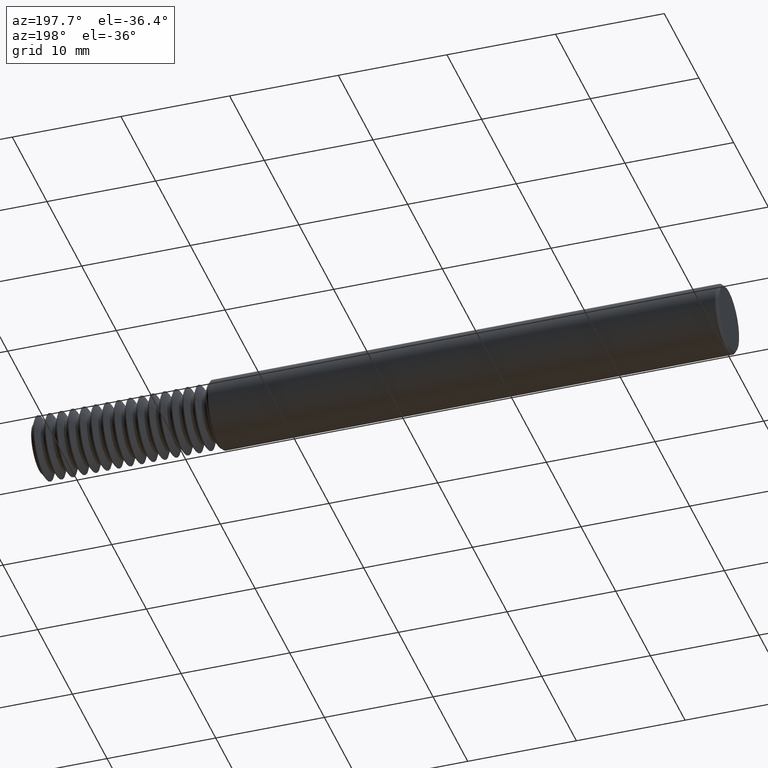
[diagram: clean part render]
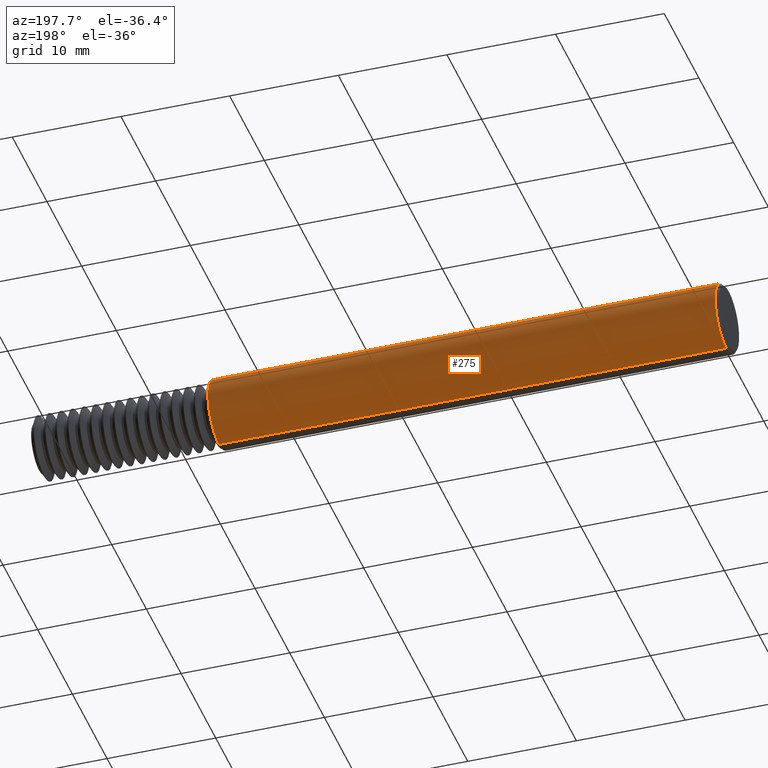
[diagram: same view with one face highlighted and labeled with its STEP entity id]
A machine part, auxiliary view. The second image highlights one B-rep face of the part: STEP entity #275.
In plain terms, the highlighted cylindrical surface (edge-blend (fillet) strip) has radius 3.1712 mm, axis along (1, -0, -0).
Its self-contained STEP definition (entity closure, byte-faithful):
#35 = EDGE_CURVE ( 'NONE', #352, #824, #982, .T. ) ;
#54 = CARTESIAN_POINT ( 'NONE',  ( 0.01000000000000016674, 1.528971528735470422E-17, 0.1248500000000000026 ) ) ;
#59 = ORIENTED_EDGE ( 'NONE', *, *, #1620, .T. ) ;
#103 = VERTEX_POINT ( 'NONE', #1461 ) ;
#115 = ORIENTED_EDGE ( 'NONE', *, *, #3108, .F. ) ;
#275 = ADVANCED_FACE ( 'NONE', ( #1129 ), #618, .T. ) ;
#352 = VERTEX_POINT ( 'NONE', #54 ) ;
#446 = VERTEX_POINT ( 'NONE', #1186 ) ;
#495 = DIRECTION ( 'NONE',  ( 0.000000000000000000, 0.000000000000000000, 1.000000000000000000 ) ) ;
#571 = AXIS2_PLACEMENT_3D ( 'NONE', #2464, #1145, #3296 ) ;
#618 = CYLINDRICAL_SURFACE ( 'NONE', #571, 0.1248500000000000026 ) ;
#674 = ORIENTED_EDGE ( 'NONE', *, *, #35, .T. ) ;
#782 = CARTESIAN_POINT ( 'NONE',  ( 0.01000000000000016674, 0.000000000000000000, 0.000000000000000000 ) ) ;
#810 = ORIENTED_EDGE ( 'NONE', *, *, #2556, .F. ) ;
#824 = VERTEX_POINT ( 'NONE', #2975 ) ;
#911 = CARTESIAN_POINT ( 'NONE',  ( 2.500000000000000000, 0.000000000000000000, -0.1248500000000000026 ) ) ;
#982 = LINE ( 'NONE', #1216, #3298 ) ;
#1033 = DIRECTION ( 'NONE',  ( 1.000000000000000000, -0.000000000000000000, -0.000000000000000000 ) ) ;
#1048 = DIRECTION ( 'NONE',  ( 0.000000000000000000, 0.000000000000000000, -1.000000000000000000 ) ) ;
#1129 = FACE_OUTER_BOUND ( 'NONE', #1784, .T. ) ;
#1145 = DIRECTION ( 'NONE',  ( 1.000000000000000000, -0.000000000000000000, -0.000000000000000000 ) ) ;
#1186 = CARTESIAN_POINT ( 'NONE',  ( 1.848150000000000404, 0.000000000000000000, -0.1248500000000000026 ) ) ;
#1216 = CARTESIAN_POINT ( 'NONE',  ( 2.500000000000000000, 1.528971528735470422E-17, 0.1248500000000000026 ) ) ;
#1262 = AXIS2_PLACEMENT_3D ( 'NONE', #3179, #3196, #1048 ) ;
#1327 = VECTOR ( 'NONE', #1441, 39.37007874015748143 ) ;
#1441 = DIRECTION ( 'NONE',  ( 1.000000000000000000, -0.000000000000000000, -0.000000000000000000 ) ) ;
#1461 = CARTESIAN_POINT ( 'NONE',  ( 0.01000000000000016674, 0.000000000000000000, -0.1248500000000000026 ) ) ;
#1498 = CIRCLE ( 'NONE', #3070, 0.1248500000000000026 ) ;
#1518 = DIRECTION ( 'NONE',  ( 1.000000000000000000, -0.000000000000000000, -0.000000000000000000 ) ) ;
#1620 = EDGE_CURVE ( 'NONE', #103, #352, #1498, .T. ) ;
#1760 = LINE ( 'NONE', #911, #1327 ) ;
#1784 = EDGE_LOOP ( 'NONE', ( #59, #674, #115, #810 ) ) ;
#2259 = CIRCLE ( 'NONE', #1262, 0.1248500000000000026 ) ;
#2464 = CARTESIAN_POINT ( 'NONE',  ( 2.500000000000000000, 0.000000000000000000, 0.000000000000000000 ) ) ;
#2556 = EDGE_CURVE ( 'NONE', #103, #446, #1760, .T. ) ;
#2975 = CARTESIAN_POINT ( 'NONE',  ( 1.848150000000000404, 1.528971528735470422E-17, 0.1248500000000000026 ) ) ;
#3070 = AXIS2_PLACEMENT_3D ( 'NONE', #782, #1033, #495 ) ;
#3108 = EDGE_CURVE ( 'NONE', #446, #824, #2259, .T. ) ;
#3179 = CARTESIAN_POINT ( 'NONE',  ( 1.848150000000000404, 0.000000000000000000, 0.000000000000000000 ) ) ;
#3196 = DIRECTION ( 'NONE',  ( 1.000000000000000000, -0.000000000000000000, -0.000000000000000000 ) ) ;
#3296 = DIRECTION ( 'NONE',  ( 0.000000000000000000, 0.000000000000000000, -1.000000000000000000 ) ) ;
#3298 = VECTOR ( 'NONE', #1518, 39.37007874015748143 ) ;